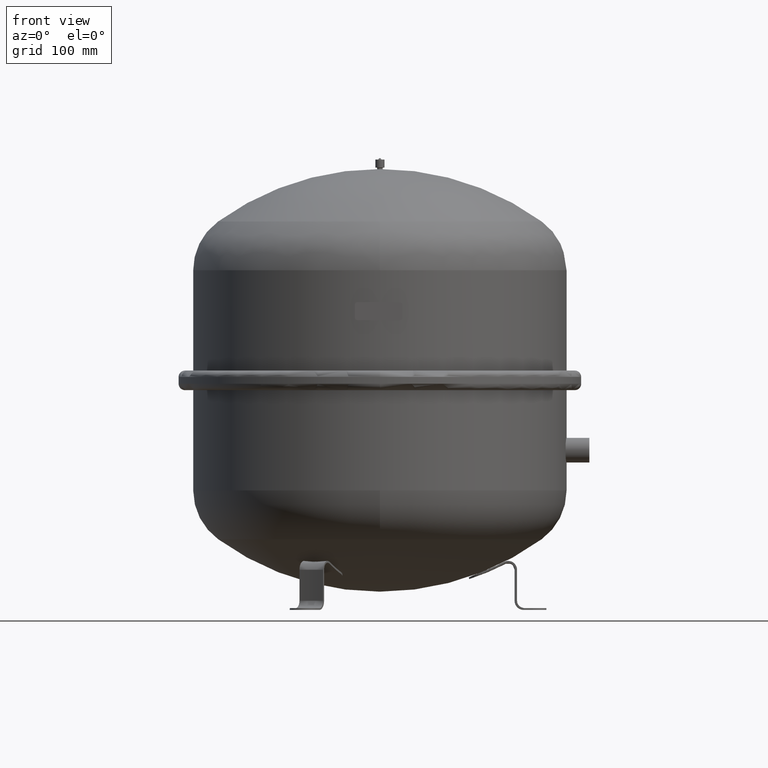
[diagram: clean part render]
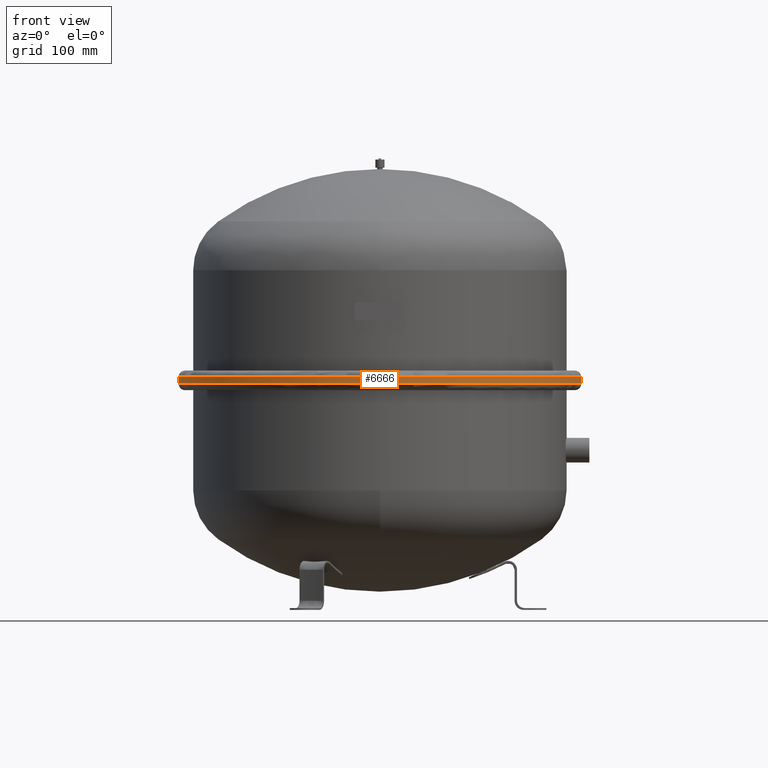
[diagram: same view with one face highlighted and labeled with its STEP entity id]
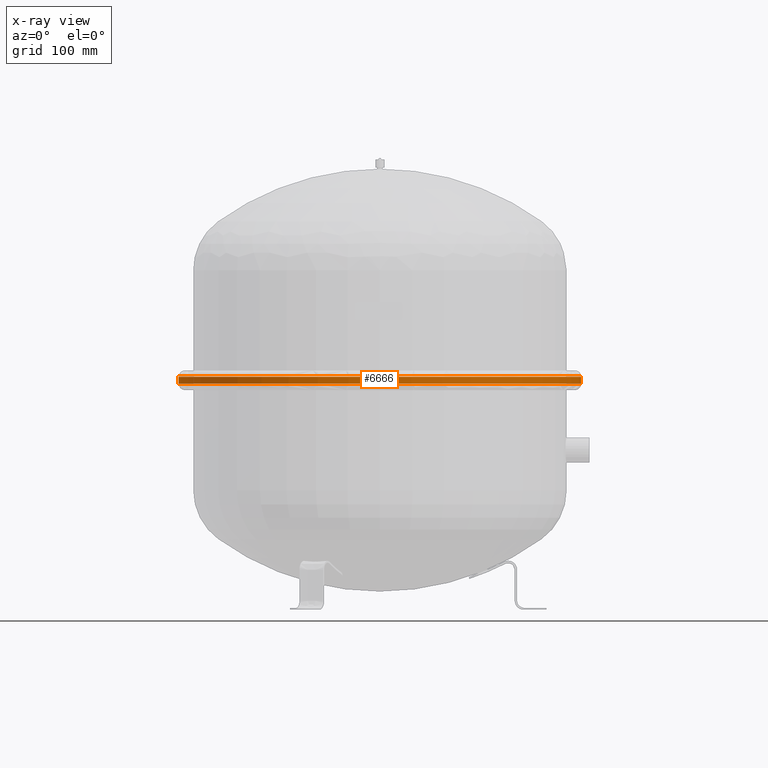
[diagram: x-ray of the same camera — body ghosted, the highlighted face saturated]
A machine part, front view. The second image highlights one B-rep face of the part: STEP entity #6666.
The next image is the same camera in x-ray: the body ghosted, the highlighted face saturated — about 0% of this face is hidden behind the body in this view.
In plain terms, the highlighted cylindrical surface (partial cylindrical patch) has radius 220.5 mm, axis along (0, 0, -1).
Its self-contained STEP definition (entity closure, byte-faithful):
#6589=CARTESIAN_POINT('',(-2.700257E-014,-220.49999999999997,247.75));
#6590=VERTEX_POINT('',#6589);
#6598=CARTESIAN_POINT('',(-220.49999999999997,2.296213E-016,247.75));
#6599=VERTEX_POINT('',#6598);
#6600=CARTESIAN_POINT('',(0.0,2.296213E-016,247.75));
#6601=DIRECTION('',(0.0,0.0,-1.0));
#6602=DIRECTION('',(-1.0,0.0,0.0));
#6603=AXIS2_PLACEMENT_3D('',#6600,#6601,#6602);
#6604=CIRCLE('',#6603,220.49999999999997);
#6605=EDGE_CURVE('',#6590,#6599,#6604,.T.);
#6617=CARTESIAN_POINT('',(0.0,0.0,251.5));
#6618=DIRECTION('',(0.0,6.123234E-017,-1.0));
#6619=DIRECTION('',(-1.0,0.0,0.0));
#6620=AXIS2_PLACEMENT_3D('',#6617,#6618,#6619);
#6621=CYLINDRICAL_SURFACE('',#6620,220.49999999999997);
#6622=CARTESIAN_POINT('',(-220.49999999999997,-2.296213E-016,255.25));
#6623=VERTEX_POINT('',#6622);
#6624=CARTESIAN_POINT('',(-220.49999999999997,2.296213E-016,247.75));
#6625=DIRECTION('',(0.0,0.0,1.0));
#6626=VECTOR('',#6625,7.5);
#6627=LINE('',#6624,#6626);
#6628=EDGE_CURVE('',#6599,#6623,#6627,.T.);
#6629=ORIENTED_EDGE('',*,*,#6628,.F.);
#6630=ORIENTED_EDGE('',*,*,#6605,.F.);
#6631=CARTESIAN_POINT('',(220.49999999999997,-2.677295E-014,247.75));
#6632=VERTEX_POINT('',#6631);
#6633=CARTESIAN_POINT('',(0.0,2.296213E-016,247.75));
#6634=DIRECTION('',(0.0,0.0,-1.0));
#6635=DIRECTION('',(-1.0,0.0,0.0));
#6636=AXIS2_PLACEMENT_3D('',#6633,#6634,#6635);
#6637=CIRCLE('',#6636,220.49999999999997);
#6638=EDGE_CURVE('',#6632,#6590,#6637,.T.);
#6639=ORIENTED_EDGE('',*,*,#6638,.F.);
#6640=CARTESIAN_POINT('',(220.49999999999997,-2.723219E-014,255.25));
#6641=VERTEX_POINT('',#6640);
#6642=CARTESIAN_POINT('',(220.49999999999997,-2.677295E-014,247.75));
#6643=DIRECTION('',(0.0,0.0,1.0));
#6644=VECTOR('',#6643,7.5);
#6645=LINE('',#6642,#6644);
#6646=EDGE_CURVE('',#6632,#6641,#6645,.T.);
#6647=ORIENTED_EDGE('',*,*,#6646,.T.);
#6648=CARTESIAN_POINT('',(-2.700257E-014,-220.49999999999997,255.25));
#6649=VERTEX_POINT('',#6648);
#6650=CARTESIAN_POINT('',(0.0,-2.296213E-016,255.25));
#6651=DIRECTION('',(0.0,0.0,-1.0));
#6652=DIRECTION('',(-1.0,0.0,0.0));
#6653=AXIS2_PLACEMENT_3D('',#6650,#6651,#6652);
#6654=CIRCLE('',#6653,220.49999999999997);
#6655=EDGE_CURVE('',#6641,#6649,#6654,.T.);
#6656=ORIENTED_EDGE('',*,*,#6655,.T.);
#6657=CARTESIAN_POINT('',(0.0,-2.296213E-016,255.25));
#6658=DIRECTION('',(0.0,0.0,-1.0));
#6659=DIRECTION('',(-1.0,0.0,0.0));
#6660=AXIS2_PLACEMENT_3D('',#6657,#6658,#6659);
#6661=CIRCLE('',#6660,220.49999999999997);
#6662=EDGE_CURVE('',#6649,#6623,#6661,.T.);
#6663=ORIENTED_EDGE('',*,*,#6662,.T.);
#6664=EDGE_LOOP('',(#6629,#6630,#6639,#6647,#6656,#6663));
#6665=FACE_OUTER_BOUND('',#6664,.T.);
#6666=ADVANCED_FACE('',(#6665),#6621,.T.);